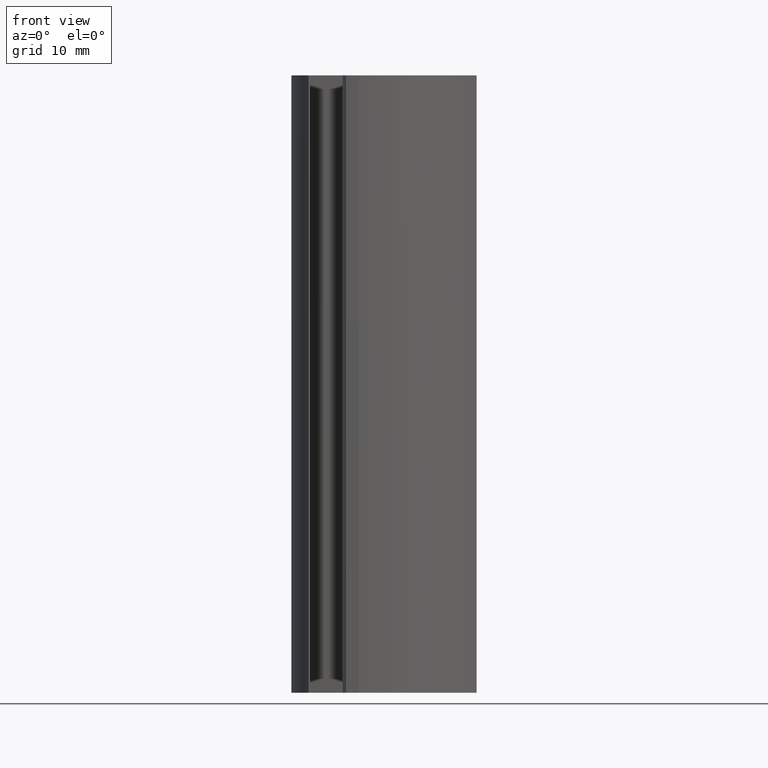
[diagram: clean part render]
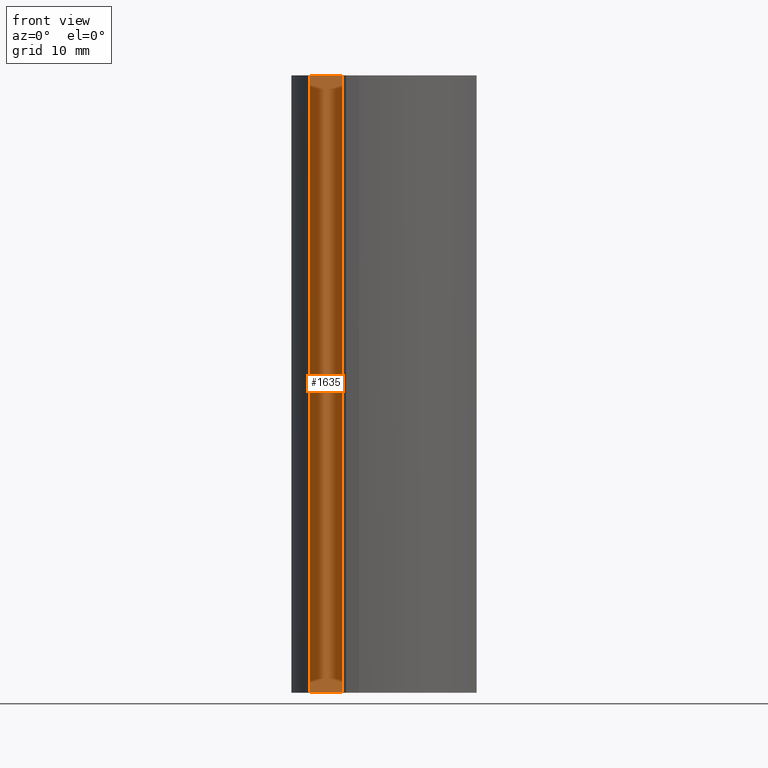
[diagram: same view with one face highlighted and labeled with its STEP entity id]
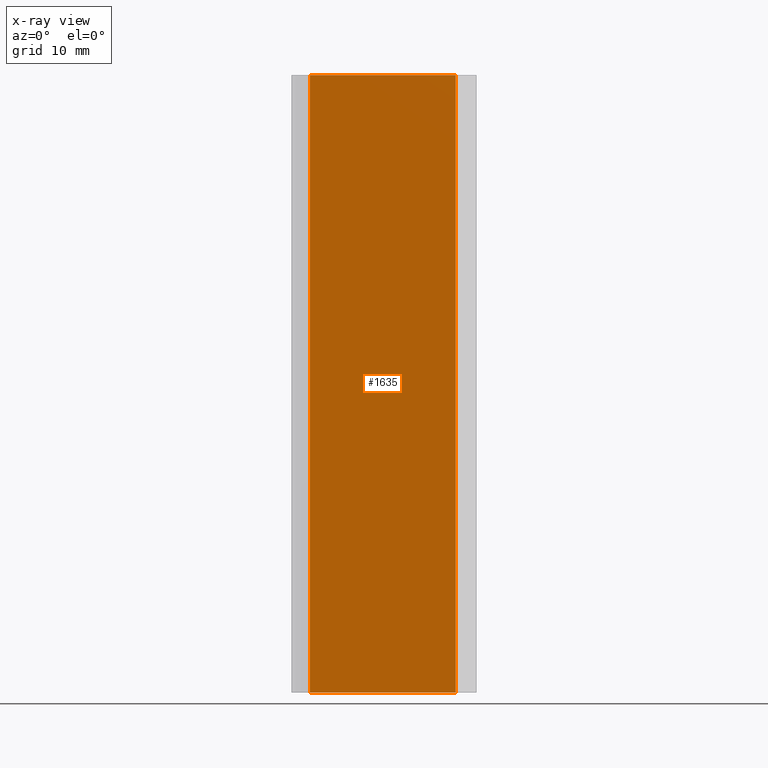
[diagram: x-ray of the same camera — body ghosted, the highlighted face saturated]
A machine part, front view. The second image highlights one B-rep face of the part: STEP entity #1635.
The next image is the same camera in x-ray: the body ghosted, the highlighted face saturated — about 0% of this face is hidden behind the body in this view.
In plain terms, the highlighted planar face has unit normal (0, -1, 0).
Its self-contained STEP definition (entity closure, byte-faithful):
#1577=CARTESIAN_POINT('',(3.0,-15.0,-100.0));
#1578=VERTEX_POINT('',#1577);
#1586=CARTESIAN_POINT('',(3.0,-15.0,0.0));
#1587=VERTEX_POINT('',#1586);
#1588=CARTESIAN_POINT('',(3.0,-15.0,-100.0));
#1589=DIRECTION('',(0.0,0.0,1.0));
#1590=VECTOR('',#1589,100.0);
#1591=LINE('',#1588,#1590);
#1592=EDGE_CURVE('',#1578,#1587,#1591,.T.);
#1605=CARTESIAN_POINT('',(3.0,-15.0,-100.0));
#1606=DIRECTION('',(0.0,-1.0,0.0));
#1607=DIRECTION('',(1.0,0.0,0.0));
#1608=AXIS2_PLACEMENT_3D('',#1605,#1606,#1607);
#1609=PLANE('',#1608);
#1610=CARTESIAN_POINT('',(26.624745659692053,-15.0,-100.0));
#1611=VERTEX_POINT('',#1610);
#1612=CARTESIAN_POINT('',(3.0,-15.0,-100.0));
#1613=DIRECTION('',(1.0,0.0,0.0));
#1614=VECTOR('',#1613,23.624745659692053);
#1615=LINE('',#1612,#1614);
#1616=EDGE_CURVE('',#1578,#1611,#1615,.T.);
#1617=ORIENTED_EDGE('',*,*,#1616,.T.);
#1618=CARTESIAN_POINT('',(26.624745659692053,-15.0,0.0));
#1619=VERTEX_POINT('',#1618);
#1620=CARTESIAN_POINT('',(26.624745659692053,-15.0,-100.0));
#1621=DIRECTION('',(0.0,0.0,1.0));
#1622=VECTOR('',#1621,100.0);
#1623=LINE('',#1620,#1622);
#1624=EDGE_CURVE('',#1611,#1619,#1623,.T.);
#1625=ORIENTED_EDGE('',*,*,#1624,.T.);
#1626=CARTESIAN_POINT('',(3.0,-15.0,0.0));
#1627=DIRECTION('',(1.0,0.0,0.0));
#1628=VECTOR('',#1627,23.624745659692053);
#1629=LINE('',#1626,#1628);
#1630=EDGE_CURVE('',#1587,#1619,#1629,.T.);
#1631=ORIENTED_EDGE('',*,*,#1630,.F.);
#1632=ORIENTED_EDGE('',*,*,#1592,.F.);
#1633=EDGE_LOOP('',(#1617,#1625,#1631,#1632));
#1634=FACE_OUTER_BOUND('',#1633,.T.);
#1635=ADVANCED_FACE('',(#1634),#1609,.T.);